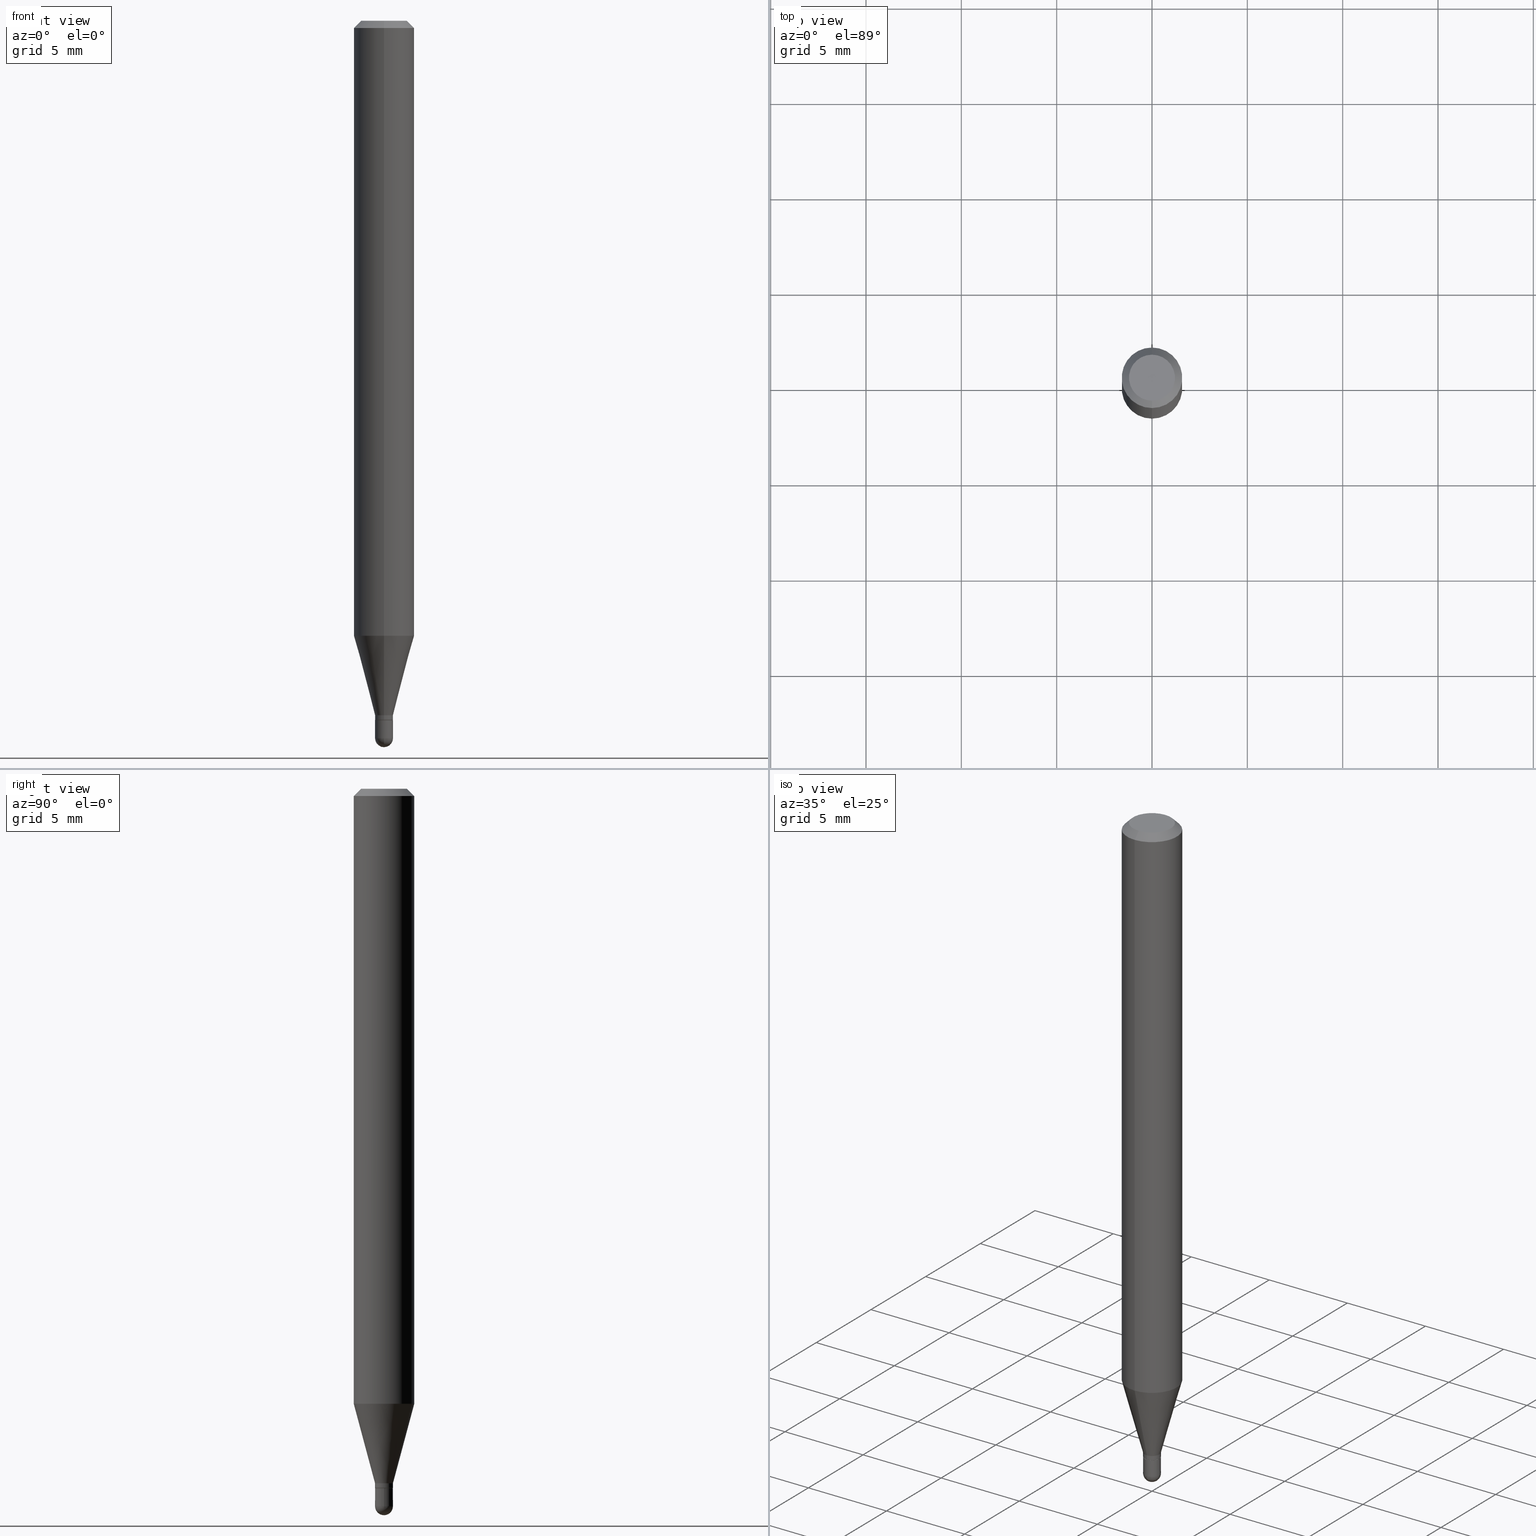
[diagram: canonical four-view strip — front | top / right | iso, engineering-drawing reading convention]
A machine part, canonical four-view strip (front | top / right | iso — engineering-drawing reading convention). The complete STEP part file that produces these views, byte-faithful:
ISO-10303-21;
HEADER;
FILE_DESCRIPTION (( 'STEP AP203' ),
    '1' );
FILE_NAME ('00772.STEP',
    '2024-03-07T18:17:13',
    ( '' ),
    ( '' ),
    'SwSTEP 2.0',
    'SolidWorks 2023',
    '' );
FILE_SCHEMA (( 'CONFIG_CONTROL_DESIGN' ));
ENDSEC;

DATA;
#1 = EDGE_LOOP ( 'NONE', ( #34, #149, #385, #326, #76 ) ) ;
#2 = EDGE_CURVE ( 'NONE', #442, #46, #142, .T. ) ;
#3 = AXIS2_PLACEMENT_3D ( 'NONE', #409, #415, #450 ) ;
#4 = LOCAL_TIME ( 13, 17, 13.00000000000000000, #107 ) ;
#5 = FACE_OUTER_BOUND ( 'NONE', #126, .T. ) ;
#6 = ORIENTED_EDGE ( 'NONE', *, *, #407, .F. ) ;
#7 = LINE ( 'NONE', #441, #89 ) ;
#8 = ORIENTED_EDGE ( 'NONE', *, *, #430, .T. ) ;
#9 = CARTESIAN_POINT ( 'NONE',  ( 3.506824125616585168E-29, -5.006752938649570137E-15, -1.434000000000000163 ) ) ;
#10 = VERTEX_POINT ( 'NONE', #57 ) ;
#11 = DIRECTION ( 'NONE',  ( -6.982962677686266711E-15, -1.000000000000000000, 3.491459510913228997E-15 ) ) ;
#12 = ORIENTED_EDGE ( 'NONE', *, *, #2, .T. ) ;
#13 = EDGE_CURVE ( 'NONE', #366, #78, #262, .T. ) ;
#14 = COORDINATED_UNIVERSAL_TIME_OFFSET ( 5, 0, .BEHIND. ) ;
#15 = CARTESIAN_POINT ( 'NONE',  ( 0.000000000000000000, 0.000000000000000000, 0.000000000000000000 ) ) ;
#16 = DIRECTION ( 'NONE',  ( 2.445484048547130509E-29, -3.491459510913228997E-15, -1.000000000000000000 ) ) ;
#17 = APPLICATION_CONTEXT ( 'configuration controlled 3d designs of mechanical parts and assemblies' ) ;
#18 = CARTESIAN_POINT ( 'NONE',  ( 3.531278966102056742E-29, -5.041667533758703886E-15, -1.444000000000000172 ) ) ;
#19 = EDGE_CURVE ( 'NONE', #147, #223, #472, .T. ) ;
#20 = CIRCLE ( 'NONE', #291, 0.01799999999999999864 ) ;
#21 = VECTOR ( 'NONE', #220, 39.37007874015748143 ) ;
#22 = DIRECTION ( 'NONE',  ( -2.445484048547130509E-29, 3.491459510913228997E-15, 1.000000000000000000 ) ) ;
#23 = APPROVAL_STATUS ( 'not_yet_approved' ) ;
#24 = DIRECTION ( 'NONE',  ( 1.000000000000000000, -6.982962677686254089E-15, 0.000000000000000000 ) ) ;
#25 = APPROVAL_STATUS ( 'not_yet_approved' ) ;
#26 = EDGE_CURVE ( 'NONE', #159, #285, #20, .T. ) ;
#27 = CARTESIAN_POINT ( 'NONE',  ( 3.531256956131338035E-29, -5.041699053289503466E-15, -1.444000000000000172 ) ) ;
#28 = LINE ( 'NONE', #423, #21 ) ;
#29 = ADVANCED_FACE ( 'NONE', ( #177 ), #210, .F. ) ;
#30 = DESIGN_CONTEXT ( 'detailed design', #127, 'design' ) ;
#31 = CARTESIAN_POINT ( 'NONE',  ( 0.000000000000000000, 0.000000000000000000, 0.000000000000000000 ) ) ;
#32 = VERTEX_POINT ( 'NONE', #340 ) ;
#33 = FACE_OUTER_BOUND ( 'NONE', #364, .T. ) ;
#34 = ORIENTED_EDGE ( 'NONE', *, *, #315, .F. ) ;
#35 = CARTESIAN_POINT ( 'NONE',  ( 0.000000000000000000, 0.000000000000000000, 0.000000000000000000 ) ) ;
#36 = CONICAL_SURFACE ( 'NONE', #310, 0.06250000000000000000, 0.7853981633974483900 ) ;
#37 = DIRECTION ( 'NONE',  ( 1.000000000000000000, -6.982962677686253300E-15, 0.000000000000000000 ) ) ;
#38 = FACE_OUTER_BOUND ( 'NONE', #469, .T. ) ;
#39 = ORIENTED_EDGE ( 'NONE', *, *, #221, .T. ) ;
#40 = LINE ( 'NONE', #320, #153 ) ;
#41 = VERTEX_POINT ( 'NONE', #457 ) ;
#42 = EDGE_CURVE ( 'NONE', #285, #78, #59, .T. ) ;
#43 = DIRECTION ( 'NONE',  ( -2.445484048547130509E-29, 3.491459510913228997E-15, 1.000000000000000000 ) ) ;
#44 = ORIENTED_EDGE ( 'NONE', *, *, #319, .T. ) ;
#45 = CARTESIAN_POINT ( 'NONE',  ( -3.773273898774340269E-16, -0.04749999999999999362, 1.569829703498762016E-16 ) ) ;
#46 = VERTEX_POINT ( 'NONE', #374 ) ;
#47 = PRODUCT_DEFINITION ( 'UNKNOWN', '', #396, #30 ) ;
#48 = CARTESIAN_POINT ( 'NONE',  ( -0.01849999999999999908, -4.975713922277193565E-15, -1.444000000000000172 ) ) ;
#49 = ORIENTED_EDGE ( 'NONE', *, *, #246, .F. ) ;
#50 = AXIS2_PLACEMENT_3D ( 'NONE', #272, #312, #222 ) ;
#51 =( NAMED_UNIT ( * ) SI_UNIT ( $, .STERADIAN. ) SOLID_ANGLE_UNIT ( ) );
#52 = ORIENTED_EDGE ( 'NONE', *, *, #195, .T. ) ;
#53 = DIRECTION ( 'NONE',  ( -6.982962677686265922E-15, -1.000000000000000000, 3.491459510913228997E-15 ) ) ;
#54 = SECURITY_CLASSIFICATION_LEVEL ( 'unclassified' ) ;
#55 = DIRECTION ( 'NONE',  ( 6.982962677686265922E-15, 1.000000000000000000, -3.491459510913228997E-15 ) ) ;
#56 = CONICAL_SURFACE ( 'NONE', #387, 0.06250000000000000000, 0.7853981633974483900 ) ;
#57 = CARTESIAN_POINT ( 'NONE',  ( -4.364351673553912750E-16, -0.06250000000000005551, -0.01499999999999979128 ) ) ;
#58 = DIRECTION ( 'NONE',  ( 1.000000000000000000, 0.000000000000000000, 0.000000000000000000 ) ) ;
#59 = LINE ( 'NONE', #377, #64 ) ;
#60 = EDGE_CURVE ( 'NONE', #78, #366, #102, .T. ) ;
#61 = ADVANCED_FACE ( 'NONE', ( #255 ), #100, .F. ) ;
#62 = DIRECTION ( 'NONE',  ( -1.000000000000000000, 7.105427357601001070E-15, -4.926315508542082329E-29 ) ) ;
#63 = FACE_OUTER_BOUND ( 'NONE', #191, .T. ) ;
#64 = VECTOR ( 'NONE', #296, 39.37007874015748143 ) ;
#65 = VECTOR ( 'NONE', #433, 39.37007874015748143 ) ;
#66 = DATE_AND_TIME ( #416, #162 ) ;
#67 = SPHERICAL_SURFACE ( 'NONE', #50, 0.01850000000000004766 ) ;
#68 = ORIENTED_EDGE ( 'NONE', *, *, #477, .T. ) ;
#69 = SHAPE_DEFINITION_REPRESENTATION ( #376, #244 ) ;
#70 = DIRECTION ( 'NONE',  ( -2.445484048547130509E-29, 3.491459510913228997E-15, 1.000000000000000000 ) ) ;
#71 = PERSON_AND_ORGANIZATION ( #418, #238 ) ;
#72 = CARTESIAN_POINT ( 'NONE',  ( 4.440892098500937762E-16, 0.06249999999999993755, -0.01500000000000022669 ) ) ;
#73 = AXIS2_PLACEMENT_3D ( 'NONE', #379, #342, #301 ) ;
#74 = LOCAL_TIME ( 13, 17, 13.00000000000000000, #249 ) ;
#75 = DIRECTION ( 'NONE',  ( -2.445484048547130509E-29, 3.491459510913228997E-15, 1.000000000000000000 ) ) ;
#76 = ORIENTED_EDGE ( 'NONE', *, *, #2, .F. ) ;
#77 = DIRECTION ( 'NONE',  ( -2.445484048547130229E-29, 3.491459510913228997E-15, 1.000000000000000000 ) ) ;
#78 = VERTEX_POINT ( 'NONE', #411 ) ;
#79 = CARTESIAN_POINT ( 'NONE',  ( 3.506824125616585168E-29, -5.006752938649570137E-15, -1.434000000000000163 ) ) ;
#80 = ORIENTED_EDGE ( 'NONE', *, *, #477, .F. ) ;
#81 = AXIS2_PLACEMENT_3D ( 'NONE', #466, #62, #428 ) ;
#82 = APPROVAL_PERSON_ORGANIZATION ( #294, #260, #449 ) ;
#83 = DIRECTION ( 'NONE',  ( -2.445484048547130509E-29, 3.491459510913228997E-15, 1.000000000000000000 ) ) ;
#84 = ORIENTED_EDGE ( 'NONE', *, *, #60, .F. ) ;
#85 = DIRECTION ( 'NONE',  ( 2.445484048547130509E-29, -3.491459510913228997E-15, -1.000000000000000000 ) ) ;
#86 = ORIENTED_EDGE ( 'NONE', *, *, #121, .F. ) ;
#87 = DATE_AND_TIME ( #176, #368 ) ;
#88 = ORIENTED_EDGE ( 'NONE', *, *, #419, .F. ) ;
#89 = VECTOR ( 'NONE', #324, 39.37007874015749564 ) ;
#90 = APPROVAL_DATE_TIME ( #87, #167 ) ;
#91 = DIRECTION ( 'NONE',  ( -2.445484048547130509E-29, 3.491459510913228997E-15, 1.000000000000000000 ) ) ;
#92 = PERSON_AND_ORGANIZATION ( #418, #238 ) ;
#93 = CARTESIAN_POINT ( 'NONE',  ( 3.840629472727447874E-16, 0.04749999999999999362, -1.747056831868805136E-16 ) ) ;
#94 = PERSON_AND_ORGANIZATION ( #418, #238 ) ;
#95 = CARTESIAN_POINT ( 'NONE',  ( 1.291848095372312248E-16, 0.01849999999999495798, -1.444000000000000172 ) ) ;
#96 = CIRCLE ( 'NONE', #160, 0.01850000000000004766 ) ;
#97 =( LENGTH_UNIT ( ) NAMED_UNIT ( * ) SI_UNIT ( $, .METRE. ) );
#98 = AXIS2_PLACEMENT_3D ( 'NONE', #295, #252, #55 ) ;
#99 = DIRECTION ( 'NONE',  ( 1.000000000000000000, -6.982962677686265922E-15, 4.883557194083112340E-29 ) ) ;
#100 = PLANE ( 'NONE',  #491 ) ;
#101 = LINE ( 'NONE', #268, #104 ) ;
#102 = CIRCLE ( 'NONE', #421, 0.01849999999999992623 ) ;
#103 = CARTESIAN_POINT ( 'NONE',  ( 0.000000000000000000, 0.000000000000000000, 0.000000000000000000 ) ) ;
#104 = VECTOR ( 'NONE', #426, 39.37007874015748143 ) ;
#105 = ORIENTED_EDGE ( 'NONE', *, *, #211, .T. ) ;
#106 = DIRECTION ( 'NONE',  ( -6.982962677686265922E-15, -1.000000000000000000, 3.483106191921935554E-15 ) ) ;
#107 = COORDINATED_UNIVERSAL_TIME_OFFSET ( 5, 0, .BEHIND. ) ;
#108 = CARTESIAN_POINT ( 'NONE',  ( 3.622962036363280209E-29, -5.172629603496120178E-15, -1.481500000000000039 ) ) ;
#109 = ORIENTED_EDGE ( 'NONE', *, *, #302, .F. ) ;
#110 = EDGE_CURVE ( 'NONE', #280, #353, #170, .T. ) ;
#111 = DIRECTION ( 'NONE',  ( -2.445468806185136597E-29, 3.491481338843145583E-15, 1.000000000000000000 ) ) ;
#112 = ORIENTED_EDGE ( 'NONE', *, *, #26, .F. ) ;
#113 = CC_DESIGN_DATE_AND_TIME_ASSIGNMENT ( #287, #335, ( #47 ) ) ;
#114 = SECURITY_CLASSIFICATION ( '', '', #54 ) ;
#115 = ADVANCED_FACE ( 'NONE', ( #297 ), #212, .T. ) ;
#116 = FACE_OUTER_BOUND ( 'NONE', #200, .T. ) ;
#117 = ORIENTED_EDGE ( 'NONE', *, *, #328, .F. ) ;
#118 = CARTESIAN_POINT ( 'NONE',  ( -4.364351673553916201E-16, -0.06250000000000000000, 2.182162194320768123E-16 ) ) ;
#119 = ORIENTED_EDGE ( 'NONE', *, *, #378, .T. ) ;
#120 = DIRECTION ( 'NONE',  ( 6.982962677686265922E-15, 1.000000000000000000, 0.000000000000000000 ) ) ;
#121 = EDGE_CURVE ( 'NONE', #313, #147, #96, .T. ) ;
#122 = ORIENTED_EDGE ( 'NONE', *, *, #134, .T. ) ;
#123 = DIRECTION ( 'NONE',  ( -2.445484048547130509E-29, 3.491459510913228997E-15, 1.000000000000000000 ) ) ;
#124 = VERTEX_POINT ( 'NONE', #93 ) ;
#125 = CARTESIAN_POINT ( 'NONE',  ( 3.668226072820698461E-31, -5.237189266369846700E-17, -0.01500000000000000812 ) ) ;
#126 = EDGE_LOOP ( 'NONE', ( #460, #8, #84, #397 ) ) ;
#127 = APPLICATION_CONTEXT ( 'configuration controlled 3d designs of mechanical parts and assemblies' ) ;
#128 = CARTESIAN_POINT ( 'NONE',  ( 3.105250614012392213E-29, -4.433419550008470244E-15, -1.269789764466969562 ) ) ;
#129 = VECTOR ( 'NONE', #158, 39.37007874015748143 ) ;
#130 = CARTESIAN_POINT ( 'NONE',  ( 0.000000000000000000, 0.000000000000000000, 0.000000000000000000 ) ) ;
#131 = DIRECTION ( 'NONE',  ( -6.982962677686265922E-15, -1.000000000000000000, 0.000000000000000000 ) ) ;
#132 = CARTESIAN_POINT ( 'NONE',  ( -1.291848095371603260E-16, -0.01850000000000492917, -1.434000000000000163 ) ) ;
#133 = DIRECTION ( 'NONE',  ( -2.445484048547130509E-29, 3.491459510913228997E-15, 1.000000000000000000 ) ) ;
#134 = EDGE_CURVE ( 'NONE', #353, #280, #298, .T. ) ;
#135 = ADVANCED_FACE ( 'NONE', ( #166 ), #448, .T. ) ;
#136 = AXIS2_PLACEMENT_3D ( 'NONE', #108, #468, #37 ) ;
#137 = DIRECTION ( 'NONE',  ( -6.982962677686265133E-15, -1.000000000000000000, 0.000000000000000000 ) ) ;
#138 = LINE ( 'NONE', #304, #349 ) ;
#139 = ORIENTED_EDGE ( 'NONE', *, *, #315, .T. ) ;
#140 = DIRECTION ( 'NONE',  ( -2.445484048547130509E-29, 3.491459510913228997E-15, 1.000000000000000000 ) ) ;
#141 = ORIENTED_EDGE ( 'NONE', *, *, #378, .F. ) ;
#142 = CIRCLE ( 'NONE', #447, 0.01849999999999999908 ) ;
#143 = DIRECTION ( 'NONE',  ( -2.445484048547130509E-29, 3.491459510913228997E-15, 1.000000000000000000 ) ) ;
#144 = AXIS2_PLACEMENT_3D ( 'NONE', #388, #431, #284 ) ;
#145 = CARTESIAN_POINT ( 'NONE',  ( -1.256933281983174667E-16, -0.01800000000000503975, -1.444000000000000172 ) ) ;
#146 = ADVANCED_FACE ( 'NONE', ( #494 ), #334, .F. ) ;
#147 = VERTEX_POINT ( 'NONE', #338 ) ;
#148 = CARTESIAN_POINT ( 'NONE',  ( 3.622962036363280209E-29, -5.172629603496120178E-15, -1.481500000000000039 ) ) ;
#149 = ORIENTED_EDGE ( 'NONE', *, *, #181, .T. ) ;
#150 = CC_DESIGN_PERSON_AND_ORGANIZATION_ASSIGNMENT ( #373, #383, ( #114 ) ) ;
#151 = CARTESIAN_POINT ( 'NONE',  ( 1.278976924368533253E-16, 0.01799999999999495753, -1.444000000000000172 ) ) ;
#152 = ORIENTED_EDGE ( 'NONE', *, *, #42, .T. ) ;
#153 = VECTOR ( 'NONE', #316, 39.37007874015748143 ) ;
#154 = DIRECTION ( 'NONE',  ( -6.982962677686265133E-15, -1.000000000000000000, 0.000000000000000000 ) ) ;
#155 = VERTEX_POINT ( 'NONE', #132 ) ;
#156 = CARTESIAN_POINT ( 'NONE',  ( 3.667412180460213863E-29, -5.238354806553930095E-15, -1.500000000000000222 ) ) ;
#157 = ORIENTED_EDGE ( 'NONE', *, *, #286, .T. ) ;
#158 = DIRECTION ( 'NONE',  ( 5.024295867788201229E-15, 0.7071067811865695552, 0.7071067811865254793 ) ) ;
#159 = VERTEX_POINT ( 'NONE', #497 ) ;
#160 = AXIS2_PLACEMENT_3D ( 'NONE', #417, #99, #369 ) ;
#161 = CONICAL_SURFACE ( 'NONE', #503, 0.01849999999999992276, 0.2617993877991501850 ) ;
#162 = LOCAL_TIME ( 13, 17, 13.00000000000000000, #506 ) ;
#163 = CARTESIAN_POINT ( 'NONE',  ( 3.506824125616585168E-29, -5.006752938649570137E-15, -1.434000000000000163 ) ) ;
#164 = VERTEX_POINT ( 'NONE', #182 ) ;
#165 = MECHANICAL_CONTEXT ( 'NONE', #17, 'mechanical' ) ;
#166 = FACE_OUTER_BOUND ( 'NONE', #389, .T. ) ;
#167 = APPROVAL ( #23, 'UNSPECIFIED' ) ;
#168 = CALENDAR_DATE ( 2024, 7, 3 ) ;
#169 = DIRECTION ( 'NONE',  ( -6.982962677686265133E-15, -1.000000000000000000, 0.000000000000000000 ) ) ;
#170 = CIRCLE ( 'NONE', #309, 0.06250000000000000000 ) ;
#171 = CIRCLE ( 'NONE', #502, 0.01850000000000000255 ) ;
#172 = AXIS2_PLACEMENT_3D ( 'NONE', #365, #43, #11 ) ;
#173 = PERSON_AND_ORGANIZATION ( #418, #238 ) ;
#174 = DIRECTION ( 'NONE',  ( -6.982962677686265922E-15, -1.000000000000000000, 4.370956789862821150E-15 ) ) ;
#175 = ADVANCED_FACE ( 'NONE', ( #228 ), #314, .T. ) ;
#176 = CALENDAR_DATE ( 2024, 7, 3 ) ;
#177 = FACE_OUTER_BOUND ( 'NONE', #511, .T. ) ;
#178 = ORIENTED_EDGE ( 'NONE', *, *, #430, .F. ) ;
#179 = AXIS2_PLACEMENT_3D ( 'NONE', #15, #250, #209 ) ;
#180 = DIRECTION ( 'NONE',  ( -6.982962677686265922E-15, -1.000000000000000000, 3.491459510913229391E-15 ) ) ;
#181 = EDGE_CURVE ( 'NONE', #223, #164, #337, .T. ) ;
#182 = CARTESIAN_POINT ( 'NONE',  ( -1.314504061155824621E-16, -0.01850000000000519979, -1.481500000000000039 ) ) ;
#183 = CARTESIAN_POINT ( 'NONE',  ( -4.364351673553607559E-16, -0.06250000000000444089, -1.269789764466969340 ) ) ;
#184 = CLOSED_SHELL ( 'NONE', ( #135, #452, #413, #241, #356, #458, #189, #488, #146, #29, #115, #245 ) ) ;
#185 = CYLINDRICAL_SURFACE ( 'NONE', #256, 0.01849999999999992276 ) ;
#186 = AXIS2_PLACEMENT_3D ( 'NONE', #435, #83, #154 ) ;
#187 = EDGE_CURVE ( 'NONE', #353, #243, #101, .T. ) ;
#188 = CARTESIAN_POINT ( 'NONE',  ( 3.668226072820698461E-31, -5.237189266369846700E-17, -0.01500000000000000812 ) ) ;
#189 = ADVANCED_FACE ( 'NONE', ( #270 ), #347, .T. ) ;
#190 = SPHERICAL_SURFACE ( 'NONE', #464, 0.01850000000000004766 ) ;
#191 = EDGE_LOOP ( 'NONE', ( #402, #463, #332, #117 ) ) ;
#192 = DIRECTION ( 'NONE',  ( -4.851104656540964275E-15, -0.7071067811865500152, -0.7071067811865450192 ) ) ;
#193 = ORIENTED_EDGE ( 'NONE', *, *, #221, .F. ) ;
#194 = CONICAL_SURFACE ( 'NONE', #186, 0.01799999999999999864, 0.7853981633974760346 ) ;
#195 = EDGE_CURVE ( 'NONE', #41, #155, #213, .T. ) ;
#196 = CIRCLE ( 'NONE', #343, 0.04749999999999999362 ) ;
#197 = DIRECTION ( 'NONE',  ( -2.445484048547130509E-29, 3.491459510913228997E-15, 1.000000000000000000 ) ) ;
#198 = ORIENTED_EDGE ( 'NONE', *, *, #362, .F. ) ;
#199 = CARTESIAN_POINT ( 'NONE',  ( 3.622962036363280209E-29, -5.172629603496120178E-15, -1.481500000000000039 ) ) ;
#200 = EDGE_LOOP ( 'NONE', ( #232, #68, #355, #141 ) ) ;
#201 = DIRECTION ( 'NONE',  ( 6.982962677686265922E-15, 1.000000000000000000, -3.483106191921935554E-15 ) ) ;
#202 = EDGE_LOOP ( 'NONE', ( #371, #122, #406, #400 ) ) ;
#203 = AXIS2_PLACEMENT_3D ( 'NONE', #207, #215, #53 ) ;
#204 = VECTOR ( 'NONE', #398, 39.37007874015748143 ) ;
#205 = APPLICATION_PROTOCOL_DEFINITION ( 'international standard', 'config_control_design', 1994, #17 ) ;
#206 = CC_DESIGN_PERSON_AND_ORGANIZATION_ASSIGNMENT ( #254, #333, ( #47 ) ) ;
#207 = CARTESIAN_POINT ( 'NONE',  ( 3.531278966102056742E-29, -5.041667533758703886E-15, -1.444000000000000172 ) ) ;
#208 = LINE ( 'NONE', #405, #465 ) ;
#209 = DIRECTION ( 'NONE',  ( -6.982962677686265922E-15, -1.000000000000000000, 3.491459510913229391E-15 ) ) ;
#210 = PLANE ( 'NONE',  #203 ) ;
#211 = EDGE_CURVE ( 'NONE', #10, #243, #299, .T. ) ;
#212 = CONICAL_SURFACE ( 'NONE', #325, 0.01799999999999999864, 0.7853981633974760346 ) ;
#213 = CIRCLE ( 'NONE', #229, 0.01849999999999992276 ) ;
#214 =( NAMED_UNIT ( * ) PLANE_ANGLE_UNIT ( ) SI_UNIT ( $, .RADIAN. ) );
#215 = DIRECTION ( 'NONE',  ( -2.445484048547130229E-29, 3.491459510913228997E-15, 1.000000000000000000 ) ) ;
#216 = FACE_OUTER_BOUND ( 'NONE', #440, .T. ) ;
#217 = DIRECTION ( 'NONE',  ( -1.000000000000000000, 6.982962677686265922E-15, -4.876176775795935793E-29 ) ) ;
#218 = CARTESIAN_POINT ( 'NONE',  ( 3.531278966102056742E-29, -5.041667533758703886E-15, -1.444000000000000172 ) ) ;
#219 = AXIS2_PLACEMENT_3D ( 'NONE', #31, #386, #346 ) ;
#220 = DIRECTION ( 'NONE',  ( -2.445468806185136877E-29, 3.491481338843145188E-15, 1.000000000000000000 ) ) ;
#221 = EDGE_CURVE ( 'NONE', #124, #243, #138, .T. ) ;
#222 = DIRECTION ( 'NONE',  ( 6.982962677686265922E-15, 1.000000000000000000, 0.000000000000000000 ) ) ;
#223 = VERTEX_POINT ( 'NONE', #311 ) ;
#224 = CYLINDRICAL_SURFACE ( 'NONE', #438, 0.06250000000000000000 ) ;
#225 = EDGE_CURVE ( 'NONE', #313, #164, #493, .T. ) ;
#226 = EDGE_CURVE ( 'NONE', #285, #159, #473, .T. ) ;
#227 = CLOSED_SHELL ( 'NONE', ( #175, #436, #61, #279, #253 ) ) ;
#228 = FACE_OUTER_BOUND ( 'NONE', #399, .T. ) ;
#229 = AXIS2_PLACEMENT_3D ( 'NONE', #505, #140, #507 ) ;
#230 = ORIENTED_EDGE ( 'NONE', *, *, #187, .T. ) ;
#231 = LINE ( 'NONE', #118, #283 ) ;
#232 = ORIENTED_EDGE ( 'NONE', *, *, #362, .T. ) ;
#233 = FACE_OUTER_BOUND ( 'NONE', #484, .T. ) ;
#234 = ORIENTED_EDGE ( 'NONE', *, *, #110, .T. ) ;
#235 = DIRECTION ( 'NONE',  ( -6.982962677686265922E-15, -1.000000000000000000, 0.000000000000000000 ) ) ;
#236 = ORIENTED_EDGE ( 'NONE', *, *, #19, .F. ) ;
#237 = AXIS2_PLACEMENT_3D ( 'NONE', #257, #336, #290 ) ;
#238 = ORGANIZATION ( 'UNSPECIFIED', 'UNSPECIFIED', '' ) ;
#239 = LINE ( 'NONE', #354, #204 ) ;
#240 = ORIENTED_EDGE ( 'NONE', *, *, #390, .T. ) ;
#241 = ADVANCED_FACE ( 'NONE', ( #471 ), #224, .T. ) ;
#242 = FACE_OUTER_BOUND ( 'NONE', #282, .T. ) ;
#243 = VERTEX_POINT ( 'NONE', #72 ) ;
#244 = ADVANCED_BREP_SHAPE_REPRESENTATION ( '00772', ( #307, #476, #456 ), #329 ) ;
#245 = ADVANCED_FACE ( 'NONE', ( #33 ), #185, .T. ) ;
#246 = EDGE_CURVE ( 'NONE', #32, #46, #28, .T. ) ;
#247 = ORIENTED_EDGE ( 'NONE', *, *, #211, .F. ) ;
#248 = CONICAL_SURFACE ( 'NONE', #317, 0.01849999999999992276, 0.2617993877991501850 ) ;
#249 = COORDINATED_UNIVERSAL_TIME_OFFSET ( 5, 0, .BEHIND. ) ;
#250 = DIRECTION ( 'NONE',  ( -2.445484048547130509E-29, 3.491459510913228997E-15, 1.000000000000000000 ) ) ;
#251 = PERSON_AND_ORGANIZATION_ROLE ( 'creator' ) ;
#252 = DIRECTION ( 'NONE',  ( 2.445484048547130229E-29, -3.491459510913228997E-15, -1.000000000000000000 ) ) ;
#253 = ADVANCED_FACE ( 'NONE', ( #509 ), #352, .T. ) ;
#254 = PERSON_AND_ORGANIZATION ( #418, #238 ) ;
#255 = FACE_OUTER_BOUND ( 'NONE', #392, .T. ) ;
#256 = AXIS2_PLACEMENT_3D ( 'NONE', #103, #351, #180 ) ;
#257 = CARTESIAN_POINT ( 'NONE',  ( 3.105250614012392213E-29, -4.433419550008470244E-15, -1.269789764466969562 ) ) ;
#258 = DIRECTION ( 'NONE',  ( 2.438088387897960049E-29, -3.491481338843145188E-15, -1.000000000000000000 ) ) ;
#259 = PRODUCT_RELATED_PRODUCT_CATEGORY ( 'detail', '', ( #510 ) ) ;
#260 = APPROVAL ( #25, 'UNSPECIFIED' ) ;
#261 = CARTESIAN_POINT ( 'NONE',  ( 0.000000000000000000, 0.000000000000000000, 0.000000000000000000 ) ) ;
#262 = CIRCLE ( 'NONE', #73, 0.01849999999999992623 ) ;
#263 = CIRCLE ( 'NONE', #144, 0.01849999999999999908 ) ;
#264 = LOCAL_TIME ( 13, 17, 13.00000000000000000, #341 ) ;
#265 = DIRECTION ( 'NONE',  ( 1.000000000000000000, -6.982962677686253300E-15, 0.000000000000000000 ) ) ;
#266 = AXIS2_PLACEMENT_3D ( 'NONE', #125, #75, #339 ) ;
#267 = EDGE_LOOP ( 'NONE', ( #234, #230, #247, #6 ) ) ;
#268 = CARTESIAN_POINT ( 'NONE',  ( 4.440892098500625669E-16, 0.06250000000000000000, -2.182162194320768123E-16 ) ) ;
#269 = APPROVAL_DATE_TIME ( #427, #372 ) ;
#270 = FACE_OUTER_BOUND ( 'NONE', #202, .T. ) ;
#271 = ORIENTED_EDGE ( 'NONE', *, *, #319, .F. ) ;
#272 = CARTESIAN_POINT ( 'NONE',  ( 3.621379978728298144E-29, -5.174895200074542438E-15, -1.481500000000000039 ) ) ;
#273 = AXIS2_PLACEMENT_3D ( 'NONE', #261, #111, #420 ) ;
#274 = APPROVAL_PERSON_ORGANIZATION ( #71, #372, #303 ) ;
#275 = ORIENTED_EDGE ( 'NONE', *, *, #19, .T. ) ;
#276 = DIRECTION ( 'NONE',  ( -6.982962677686265922E-15, -1.000000000000000000, 0.000000000000000000 ) ) ;
#277 = ORIENTED_EDGE ( 'NONE', *, *, #302, .T. ) ;
#278 = CARTESIAN_POINT ( 'NONE',  ( 3.668226072820698461E-31, -5.237189266369846700E-17, -0.01500000000000000812 ) ) ;
#279 = ADVANCED_FACE ( 'NONE', ( #63 ), #67, .T. ) ;
#280 = VERTEX_POINT ( 'NONE', #183 ) ;
#281 = DIRECTION ( 'NONE',  ( -2.445484048547130509E-29, 3.491459510913228997E-15, 1.000000000000000000 ) ) ;
#282 = EDGE_LOOP ( 'NONE', ( #86, #444, #321, #236 ) ) ;
#283 = VECTOR ( 'NONE', #77, 39.37007874015748143 ) ;
#284 = DIRECTION ( 'NONE',  ( 1.000000000000000000, -6.982962677686254089E-15, 0.000000000000000000 ) ) ;
#285 = VERTEX_POINT ( 'NONE', #145 ) ;
#286 = EDGE_CURVE ( 'NONE', #32, #147, #292, .T. ) ;
#287 = DATE_AND_TIME ( #370, #74 ) ;
#288 = ORIENTED_EDGE ( 'NONE', *, *, #195, .F. ) ;
#289 = APPROVAL_DATE_TIME ( #375, #260 ) ;
#290 = DIRECTION ( 'NONE',  ( -6.982962677686265922E-15, -1.000000000000000000, 4.370956789862821150E-15 ) ) ;
#291 = AXIS2_PLACEMENT_3D ( 'NONE', #18, #451, #137 ) ;
#292 = CIRCLE ( 'NONE', #136, 0.01850000000000000255 ) ;
#293 = UNCERTAINTY_MEASURE_WITH_UNIT (LENGTH_MEASURE( 1.000000000000000082E-05 ), #401, 'distance_accuracy_value', 'NONE');
#294 = PERSON_AND_ORGANIZATION ( #418, #238 ) ;
#295 = CARTESIAN_POINT ( 'NONE',  ( 3.316907271900976096E-16, 0.04749999999999999362, -1.702750049776294233E-16 ) ) ;
#296 = DIRECTION ( 'NONE',  ( -4.937700262164684515E-15, -0.7071067811865646702, 0.7071067811865303643 ) ) ;
#297 = FACE_OUTER_BOUND ( 'NONE', #432, .T. ) ;
#298 = CIRCLE ( 'NONE', #237, 0.06250000000000000000 ) ;
#299 = CIRCLE ( 'NONE', #403, 0.06250000000000000000 ) ;
#300 = CC_DESIGN_APPROVAL ( #260, ( #47 ) ) ;
#301 = DIRECTION ( 'NONE',  ( -6.982962677686265922E-15, -1.000000000000000000, 0.000000000000000000 ) ) ;
#302 = EDGE_CURVE ( 'NONE', #46, #442, #263, .T. ) ;
#303 = APPROVAL_ROLE ( '' ) ;
#304 = CARTESIAN_POINT ( 'NONE',  ( 4.364351673553919652E-16, 0.06249999999999995143, -0.01500000000000022669 ) ) ;
#305 = VERTEX_POINT ( 'NONE', #45 ) ;
#306 = DIRECTION ( 'NONE',  ( -2.445484048547130509E-29, 3.491459510913228997E-15, 1.000000000000000000 ) ) ;
#307 = MANIFOLD_SOLID_BREP ( 'Body-Move/Copy2[1]', #227 ) ;
#308 = ORIENTED_EDGE ( 'NONE', *, *, #470, .T. ) ;
#309 = AXIS2_PLACEMENT_3D ( 'NONE', #128, #22, #174 ) ;
#310 = AXIS2_PLACEMENT_3D ( 'NONE', #498, #16, #489 ) ;
#311 = CARTESIAN_POINT ( 'NONE',  ( -0.01850000000000000255, -4.975713922277193565E-15, -1.481500000000000039 ) ) ;
#312 = DIRECTION ( 'NONE',  ( -1.000000000000000000, 6.982962677686265922E-15, -4.883557194083112901E-29 ) ) ;
#313 = VERTEX_POINT ( 'NONE', #156 ) ;
#314 = CYLINDRICAL_SURFACE ( 'NONE', #219, 0.01849999999999999908 ) ;
#315 = EDGE_CURVE ( 'NONE', #223, #442, #239, .T. ) ;
#316 = DIRECTION ( 'NONE',  ( -2.445484048547130229E-29, 3.491459510913228997E-15, 1.000000000000000000 ) ) ;
#317 = AXIS2_PLACEMENT_3D ( 'NONE', #163, #123, #235 ) ;
#318 = ORIENTED_EDGE ( 'NONE', *, *, #382, .F. ) ;
#319 = EDGE_CURVE ( 'NONE', #305, #124, #196, .T. ) ;
#320 = CARTESIAN_POINT ( 'NONE',  ( 1.314504061156179609E-16, 0.01849999999999992276, -6.459200095189447069E-17 ) ) ;
#321 = ORIENTED_EDGE ( 'NONE', *, *, #181, .F. ) ;
#322 = CARTESIAN_POINT ( 'NONE',  ( -4.287811248607203282E-16, -0.06250000000000005551, -0.01499999999999979128 ) ) ;
#323 = ORIENTED_EDGE ( 'NONE', *, *, #390, .F. ) ;
#324 = DIRECTION ( 'NONE',  ( -1.807323732225329350E-15, -0.2588190451025180194, 0.9659258262890689783 ) ) ;
#325 = AXIS2_PLACEMENT_3D ( 'NONE', #490, #91, #169 ) ;
#326 = ORIENTED_EDGE ( 'NONE', *, *, #246, .T. ) ;
#327 = CIRCLE ( 'NONE', #172, 0.04749999999999999362 ) ;
#328 = EDGE_CURVE ( 'NONE', #164, #32, #171, .T. ) ;
#329 =( GEOMETRIC_REPRESENTATION_CONTEXT ( 3 ) GLOBAL_UNCERTAINTY_ASSIGNED_CONTEXT ( ( #293 ) ) GLOBAL_UNIT_ASSIGNED_CONTEXT ( ( #401, #214, #51 ) ) REPRESENTATION_CONTEXT ( 'NONE', 'WORKASPACE' ) );
#330 = DIMENSIONAL_EXPONENTS ( 1.000000000000000000, 0.000000000000000000, 0.000000000000000000, 0.000000000000000000, 0.000000000000000000, 0.000000000000000000, 0.000000000000000000 ) ;
#331 = DIRECTION ( 'NONE',  ( -6.982962677686266711E-15, -1.000000000000000000, 3.491459510913228997E-15 ) ) ;
#332 = ORIENTED_EDGE ( 'NONE', *, *, #286, .F. ) ;
#333 = PERSON_AND_ORGANIZATION_ROLE ( 'creator' ) ;
#334 = PLANE ( 'NONE',  #98 ) ;
#335 = DATE_TIME_ROLE ( 'creation_date' ) ;
#336 = DIRECTION ( 'NONE',  ( -2.445484048547130509E-29, 3.491459510913228997E-15, 1.000000000000000000 ) ) ;
#337 = CIRCLE ( 'NONE', #495, 0.01850000000000000255 ) ;
#338 = CARTESIAN_POINT ( 'NONE',  ( 1.291848095372323095E-16, 0.01849999999999485042, -1.481500000000000039 ) ) ;
#339 = DIRECTION ( 'NONE',  ( -6.982962677686265922E-15, -1.000000000000000000, 3.483106191921935554E-15 ) ) ;
#340 = CARTESIAN_POINT ( 'NONE',  ( 0.01850000000000000255, -5.236349137930007031E-15, -1.481500000000000039 ) ) ;
#341 = COORDINATED_UNIVERSAL_TIME_OFFSET ( 5, 0, .BEHIND. ) ;
#342 = DIRECTION ( 'NONE',  ( -2.445484048547130509E-29, 3.491459510913228997E-15, 1.000000000000000000 ) ) ;
#343 = AXIS2_PLACEMENT_3D ( 'NONE', #474, #197, #331 ) ;
#344 = CC_DESIGN_APPROVAL ( #372, ( #114 ) ) ;
#345 = APPROVAL_STATUS ( 'not_yet_approved' ) ;
#346 = DIRECTION ( 'NONE',  ( 1.000000000000000000, -6.982962677686266711E-15, 4.876176775795935232E-29 ) ) ;
#347 = CYLINDRICAL_SURFACE ( 'NONE', #412, 0.06250000000000000000 ) ;
#348 = DIRECTION ( 'NONE',  ( 4.937700262164548042E-15, 0.7071067811865451302, -0.7071067811865499042 ) ) ;
#349 = VECTOR ( 'NONE', #348, 39.37007874015748143 ) ;
#350 = APPROVAL_PERSON_ORGANIZATION ( #410, #167, #443 ) ;
#351 = DIRECTION ( 'NONE',  ( -2.445484048547130509E-29, 3.491459510913228997E-15, 1.000000000000000000 ) ) ;
#352 = CYLINDRICAL_SURFACE ( 'NONE', #273, 0.01849999999999999908 ) ;
#353 = VERTEX_POINT ( 'NONE', #439 ) ;
#354 = CARTESIAN_POINT ( 'NONE',  ( -0.01849999999999999908, 1.314504061156185279E-16, -9.100029916971574589E-31 ) ) ;
#355 = ORIENTED_EDGE ( 'NONE', *, *, #110, .F. ) ;
#356 = ADVANCED_FACE ( 'NONE', ( #116 ), #248, .T. ) ;
#357 = LINE ( 'NONE', #478, #65 ) ;
#358 = VECTOR ( 'NONE', #192, 39.37007874015748143 ) ;
#359 = ORIENTED_EDGE ( 'NONE', *, *, #13, .F. ) ;
#360 = CARTESIAN_POINT ( 'NONE',  ( 1.314504061156528433E-16, 0.01849999999999482267, -1.443500000000000227 ) ) ;
#361 = ORIENTED_EDGE ( 'NONE', *, *, #467, .T. ) ;
#362 = EDGE_CURVE ( 'NONE', #155, #41, #455, .T. ) ;
#363 = LINE ( 'NONE', #151, #129 ) ;
#364 = EDGE_LOOP ( 'NONE', ( #323, #437, #479, #288 ) ) ;
#365 = CARTESIAN_POINT ( 'NONE',  ( 2.167030576993772327E-46, -3.093906714697130127E-32, -8.861356418502143693E-18 ) ) ;
#366 = VERTEX_POINT ( 'NONE', #360 ) ;
#367 = AXIS2_PLACEMENT_3D ( 'NONE', #218, #70, #380 ) ;
#368 = LOCAL_TIME ( 13, 17, 13.00000000000000000, #14 ) ;
#369 = DIRECTION ( 'NONE',  ( 6.982962677686265133E-15, 1.000000000000000000, 0.000000000000000000 ) ) ;
#370 = CALENDAR_DATE ( 2024, 7, 3 ) ;
#371 = ORIENTED_EDGE ( 'NONE', *, *, #187, .F. ) ;
#372 = APPROVAL ( #345, 'UNSPECIFIED' ) ;
#373 = PERSON_AND_ORGANIZATION ( #418, #238 ) ;
#374 = CARTESIAN_POINT ( 'NONE',  ( 0.01849999999999999908, -5.170883862826698675E-15, -1.444000000000000172 ) ) ;
#375 = DATE_AND_TIME ( #168, #264 ) ;
#376 = PRODUCT_DEFINITION_SHAPE ( 'NONE', 'NONE',  #47 ) ;
#377 = CARTESIAN_POINT ( 'NONE',  ( -1.256933281983174667E-16, -0.01800000000000503975, -1.444000000000000172 ) ) ;
#378 = EDGE_CURVE ( 'NONE', #155, #280, #7, .T. ) ;
#379 = CARTESIAN_POINT ( 'NONE',  ( 3.530056224077783079E-29, -5.039921804003247948E-15, -1.443500000000000227 ) ) ;
#380 = DIRECTION ( 'NONE',  ( -6.982962677686265133E-15, -1.000000000000000000, 0.000000000000000000 ) ) ;
#381 = DIRECTION ( 'NONE',  ( -6.982962677686265922E-15, -1.000000000000000000, 3.491459510913228997E-15 ) ) ;
#382 = EDGE_CURVE ( 'NONE', #305, #10, #482, .T. ) ;
#383 = PERSON_AND_ORGANIZATION_ROLE ( 'classification_officer' ) ;
#384 = DIRECTION ( 'NONE',  ( -2.445468806185136597E-29, 3.491481338843145583E-15, 1.000000000000000000 ) ) ;
#385 = ORIENTED_EDGE ( 'NONE', *, *, #328, .T. ) ;
#386 = DIRECTION ( 'NONE',  ( -2.445468806185136597E-29, 3.491481338843145583E-15, 1.000000000000000000 ) ) ;
#387 = AXIS2_PLACEMENT_3D ( 'NONE', #278, #85, #201 ) ;
#388 = CARTESIAN_POINT ( 'NONE',  ( 3.531256956131338035E-29, -5.041699053289503466E-15, -1.444000000000000172 ) ) ;
#389 = EDGE_LOOP ( 'NONE', ( #424, #240, #198, #88 ) ) ;
#390 = EDGE_CURVE ( 'NONE', #366, #41, #40, .T. ) ;
#391 = CARTESIAN_POINT ( 'NONE',  ( 3.621379978728298144E-29, -5.174895200074542438E-15, -1.481500000000000039 ) ) ;
#392 = EDGE_LOOP ( 'NONE', ( #277, #12 ) ) ;
#393 = DIRECTION ( 'NONE',  ( -2.445484048547130509E-29, 3.491459510913228997E-15, 1.000000000000000000 ) ) ;
#394 = ORIENTED_EDGE ( 'NONE', *, *, #382, .T. ) ;
#395 = DIRECTION ( 'NONE',  ( -6.982962677686265922E-15, -1.000000000000000000, 0.000000000000000000 ) ) ;
#396 = PRODUCT_DEFINITION_FORMATION_WITH_SPECIFIED_SOURCE ( 'ANY', '', #510, .NOT_KNOWN. ) ;
#397 = ORIENTED_EDGE ( 'NONE', *, *, #42, .F. ) ;
#398 = DIRECTION ( 'NONE',  ( -2.445468806185136877E-29, 3.491481338843145188E-15, 1.000000000000000000 ) ) ;
#399 = EDGE_LOOP ( 'NONE', ( #275, #139, #109, #49, #157 ) ) ;
#400 = ORIENTED_EDGE ( 'NONE', *, *, #470, .F. ) ;
#401 =( CONVERSION_BASED_UNIT ( 'INCH', #492 ) LENGTH_UNIT ( ) NAMED_UNIT ( #330 ) );
#402 = ORIENTED_EDGE ( 'NONE', *, *, #225, .F. ) ;
#403 = AXIS2_PLACEMENT_3D ( 'NONE', #188, #143, #106 ) ;
#404 = CC_DESIGN_SECURITY_CLASSIFICATION ( #114, ( #396 ) ) ;
#405 = CARTESIAN_POINT ( 'NONE',  ( 1.314504061156530405E-16, 0.01849999999999491634, -1.434000000000000163 ) ) ;
#406 = ORIENTED_EDGE ( 'NONE', *, *, #407, .T. ) ;
#407 = EDGE_CURVE ( 'NONE', #280, #10, #231, .T. ) ;
#408 = PERSON_AND_ORGANIZATION_ROLE ( 'design_supplier' ) ;
#409 = CARTESIAN_POINT ( 'NONE',  ( 3.622962036363280209E-29, -5.172629603496120178E-15, -1.481500000000000039 ) ) ;
#410 = PERSON_AND_ORGANIZATION ( #418, #238 ) ;
#411 = CARTESIAN_POINT ( 'NONE',  ( -1.291848095371605232E-16, -0.01850000000000502978, -1.443500000000000227 ) ) ;
#412 = AXIS2_PLACEMENT_3D ( 'NONE', #504, #459, #381 ) ;
#413 = ADVANCED_FACE ( 'NONE', ( #233 ), #56, .T. ) ;
#414 = APPLICATION_PROTOCOL_DEFINITION ( 'international standard', 'config_control_design', 1994, #127 ) ;
#415 = DIRECTION ( 'NONE',  ( -2.445468806185136597E-29, 3.491481338843145583E-15, 1.000000000000000000 ) ) ;
#416 = CALENDAR_DATE ( 2024, 7, 3 ) ;
#417 = CARTESIAN_POINT ( 'NONE',  ( 3.621379978728298144E-29, -5.174895200074542438E-15, -1.481500000000000039 ) ) ;
#418 = PERSON ( 'UNSPECIFIED', 'UNSPECIFIED', 'UNSPECIFIED', ('UNSPECIFIED'), ('UNSPECIFIED'), ('UNSPECIFIED') ) ;
#419 = EDGE_CURVE ( 'NONE', #78, #155, #357, .T. ) ;
#420 = DIRECTION ( 'NONE',  ( 1.000000000000000000, -6.982962677686266711E-15, 4.876176775795935232E-29 ) ) ;
#421 = AXIS2_PLACEMENT_3D ( 'NONE', #454, #133, #131 ) ;
#422 = DATE_TIME_ROLE ( 'classification_date' ) ;
#423 = CARTESIAN_POINT ( 'NONE',  ( 0.01849999999999999908, -1.291848095371959233E-16, 9.020927035222480096E-31 ) ) ;
#424 = ORIENTED_EDGE ( 'NONE', *, *, #60, .T. ) ;
#425 = CALENDAR_DATE ( 2024, 7, 3 ) ;
#426 = DIRECTION ( 'NONE',  ( -2.445484048547130229E-29, 3.491459510913228997E-15, 1.000000000000000000 ) ) ;
#427 = DATE_AND_TIME ( #425, #4 ) ;
#428 = DIRECTION ( 'NONE',  ( -7.105427357601000281E-15, -1.000000000000000000, 0.000000000000000000 ) ) ;
#429 = CC_DESIGN_PERSON_AND_ORGANIZATION_ASSIGNMENT ( #92, #251, ( #396 ) ) ;
#430 = EDGE_CURVE ( 'NONE', #159, #366, #363, .T. ) ;
#431 = DIRECTION ( 'NONE',  ( -2.445468806185136597E-29, 3.491481338843145583E-15, 1.000000000000000000 ) ) ;
#432 = EDGE_LOOP ( 'NONE', ( #178, #475, #152, #359 ) ) ;
#433 = DIRECTION ( 'NONE',  ( -2.445484048547130229E-29, 3.491459510913228997E-15, 1.000000000000000000 ) ) ;
#434 = EDGE_LOOP ( 'NONE', ( #361, #44 ) ) ;
#435 = CARTESIAN_POINT ( 'NONE',  ( 3.531278966102056742E-29, -5.041667533758703886E-15, -1.444000000000000172 ) ) ;
#436 = ADVANCED_FACE ( 'NONE', ( #242 ), #190, .T. ) ;
#437 = ORIENTED_EDGE ( 'NONE', *, *, #13, .T. ) ;
#438 = AXIS2_PLACEMENT_3D ( 'NONE', #35, #306, #462 ) ;
#439 = CARTESIAN_POINT ( 'NONE',  ( 4.440892098500933817E-16, 0.06249999999999555217, -1.269789764466970006 ) ) ;
#440 = EDGE_LOOP ( 'NONE', ( #318, #499, #39, #308 ) ) ;
#441 = CARTESIAN_POINT ( 'NONE',  ( -1.291848095371603260E-16, -0.01850000000000492917, -1.434000000000000163 ) ) ;
#442 = VERTEX_POINT ( 'NONE', #48 ) ;
#443 = APPROVAL_ROLE ( '' ) ;
#444 = ORIENTED_EDGE ( 'NONE', *, *, #225, .T. ) ;
#445 = CC_DESIGN_PERSON_AND_ORGANIZATION_ASSIGNMENT ( #94, #446, ( #510 ) ) ;
#446 = PERSON_AND_ORGANIZATION_ROLE ( 'design_owner' ) ;
#447 = AXIS2_PLACEMENT_3D ( 'NONE', #27, #501, #24 ) ;
#448 = CYLINDRICAL_SURFACE ( 'NONE', #179, 0.01849999999999992276 ) ;
#449 = APPROVAL_ROLE ( '' ) ;
#450 = DIRECTION ( 'NONE',  ( 1.000000000000000000, -6.982962677686253300E-15, 0.000000000000000000 ) ) ;
#451 = DIRECTION ( 'NONE',  ( -2.445484048547130509E-29, 3.491459510913228997E-15, 1.000000000000000000 ) ) ;
#452 = ADVANCED_FACE ( 'NONE', ( #5 ), #194, .T. ) ;
#453 = DIRECTION ( 'NONE',  ( 0.000000000000000000, 0.000000000000000000, 1.000000000000000000 ) ) ;
#454 = CARTESIAN_POINT ( 'NONE',  ( 3.530056224077783079E-29, -5.039921804003247948E-15, -1.443500000000000227 ) ) ;
#455 = CIRCLE ( 'NONE', #508, 0.01849999999999992276 ) ;
#456 = AXIS2_PLACEMENT_3D ( 'NONE', #130, #453, #58 ) ;
#457 = CARTESIAN_POINT ( 'NONE',  ( 2.877698079828734700E-16, 0.01849999999999491634, -1.434000000000000163 ) ) ;
#458 = ADVANCED_FACE ( 'NONE', ( #38 ), #161, .T. ) ;
#459 = DIRECTION ( 'NONE',  ( -2.445484048547130509E-29, 3.491459510913228997E-15, 1.000000000000000000 ) ) ;
#460 = ORIENTED_EDGE ( 'NONE', *, *, #226, .T. ) ;
#461 = CC_DESIGN_PERSON_AND_ORGANIZATION_ASSIGNMENT ( #173, #408, ( #396 ) ) ;
#462 = DIRECTION ( 'NONE',  ( -6.982962677686265922E-15, -1.000000000000000000, 3.491459510913228997E-15 ) ) ;
#463 = ORIENTED_EDGE ( 'NONE', *, *, #121, .T. ) ;
#464 = AXIS2_PLACEMENT_3D ( 'NONE', #391, #480, #120 ) ;
#465 = VECTOR ( 'NONE', #500, 39.37007874015748143 ) ;
#466 = CARTESIAN_POINT ( 'NONE',  ( 3.621379978728298144E-29, -5.174895200074542438E-15, -1.481500000000000039 ) ) ;
#467 = EDGE_CURVE ( 'NONE', #124, #305, #327, .T. ) ;
#468 = DIRECTION ( 'NONE',  ( -2.445468806185136597E-29, 3.491481338843145583E-15, 1.000000000000000000 ) ) ;
#469 = EDGE_LOOP ( 'NONE', ( #80, #52, #119, #481 ) ) ;
#470 = EDGE_CURVE ( 'NONE', #243, #10, #496, .T. ) ;
#471 = FACE_OUTER_BOUND ( 'NONE', #267, .T. ) ;
#472 = CIRCLE ( 'NONE', #3, 0.01850000000000000255 ) ;
#473 = CIRCLE ( 'NONE', #367, 0.01799999999999999864 ) ;
#474 = CARTESIAN_POINT ( 'NONE',  ( 2.167030576993772327E-46, -3.093906714697130127E-32, -8.861356418502143693E-18 ) ) ;
#475 = ORIENTED_EDGE ( 'NONE', *, *, #26, .T. ) ;
#476 = MANIFOLD_SOLID_BREP ( 'Body-Move/Copy2[2]', #184 ) ;
#477 = EDGE_CURVE ( 'NONE', #41, #353, #208, .T. ) ;
#478 = CARTESIAN_POINT ( 'NONE',  ( -1.291848095371953810E-16, -0.01849999999999992276, 6.459200095189447069E-17 ) ) ;
#479 = ORIENTED_EDGE ( 'NONE', *, *, #419, .T. ) ;
#480 = DIRECTION ( 'NONE',  ( -1.000000000000000000, 6.982962677686265922E-15, -4.883557194083112901E-29 ) ) ;
#481 = ORIENTED_EDGE ( 'NONE', *, *, #134, .F. ) ;
#482 = LINE ( 'NONE', #322, #358 ) ;
#483 = CC_DESIGN_APPROVAL ( #167, ( #396 ) ) ;
#484 = EDGE_LOOP ( 'NONE', ( #271, #394, #105, #193 ) ) ;
#485 = DIRECTION ( 'NONE',  ( -2.445468806185136597E-29, 3.491481338843145583E-15, 1.000000000000000000 ) ) ;
#486 = ORIENTED_EDGE ( 'NONE', *, *, #226, .F. ) ;
#487 = CC_DESIGN_DATE_AND_TIME_ASSIGNMENT ( #66, #422, ( #114 ) ) ;
#488 = ADVANCED_FACE ( 'NONE', ( #216 ), #36, .T. ) ;
#489 = DIRECTION ( 'NONE',  ( 6.982962677686265922E-15, 1.000000000000000000, -3.483106191921935554E-15 ) ) ;
#490 = CARTESIAN_POINT ( 'NONE',  ( 3.531278966102056742E-29, -5.041667533758703886E-15, -1.444000000000000172 ) ) ;
#491 = AXIS2_PLACEMENT_3D ( 'NONE', #95, #258, #217 ) ;
#492 = LENGTH_MEASURE_WITH_UNIT ( LENGTH_MEASURE( 0.02539999999999999897 ), #97 );
#493 = CIRCLE ( 'NONE', #81, 0.01850000000000004766 ) ;
#494 = FACE_OUTER_BOUND ( 'NONE', #434, .T. ) ;
#495 = AXIS2_PLACEMENT_3D ( 'NONE', #148, #384, #265 ) ;
#496 = CIRCLE ( 'NONE', #266, 0.06250000000000000000 ) ;
#497 = CARTESIAN_POINT ( 'NONE',  ( 1.296740492762533062E-16, 0.01799999999999495753, -1.444000000000000172 ) ) ;
#498 = CARTESIAN_POINT ( 'NONE',  ( 3.668226072820698461E-31, -5.237189266369846700E-17, -0.01500000000000000812 ) ) ;
#499 = ORIENTED_EDGE ( 'NONE', *, *, #467, .F. ) ;
#500 = DIRECTION ( 'NONE',  ( 1.839019923739599526E-15, 0.2588190451025248473, 0.9659258262890670910 ) ) ;
#501 = DIRECTION ( 'NONE',  ( -2.445468806185136597E-29, 3.491481338843145583E-15, 1.000000000000000000 ) ) ;
#502 = AXIS2_PLACEMENT_3D ( 'NONE', #199, #485, #512 ) ;
#503 = AXIS2_PLACEMENT_3D ( 'NONE', #79, #281, #395 ) ;
#504 = CARTESIAN_POINT ( 'NONE',  ( 0.000000000000000000, 0.000000000000000000, 0.000000000000000000 ) ) ;
#505 = CARTESIAN_POINT ( 'NONE',  ( 3.506824125616585168E-29, -5.006752938649570137E-15, -1.434000000000000163 ) ) ;
#506 = COORDINATED_UNIVERSAL_TIME_OFFSET ( 5, 0, .BEHIND. ) ;
#507 = DIRECTION ( 'NONE',  ( -6.982962677686265922E-15, -1.000000000000000000, 0.000000000000000000 ) ) ;
#508 = AXIS2_PLACEMENT_3D ( 'NONE', #9, #393, #276 ) ;
#509 = FACE_OUTER_BOUND ( 'NONE', #1, .T. ) ;
#510 = PRODUCT ( '00772', '00772', '', ( #165 ) ) ;
#511 = EDGE_LOOP ( 'NONE', ( #486, #112 ) ) ;
#512 = DIRECTION ( 'NONE',  ( 1.000000000000000000, -6.982962677686253300E-15, 0.000000000000000000 ) ) ;
ENDSEC;
END-ISO-10303-21;
